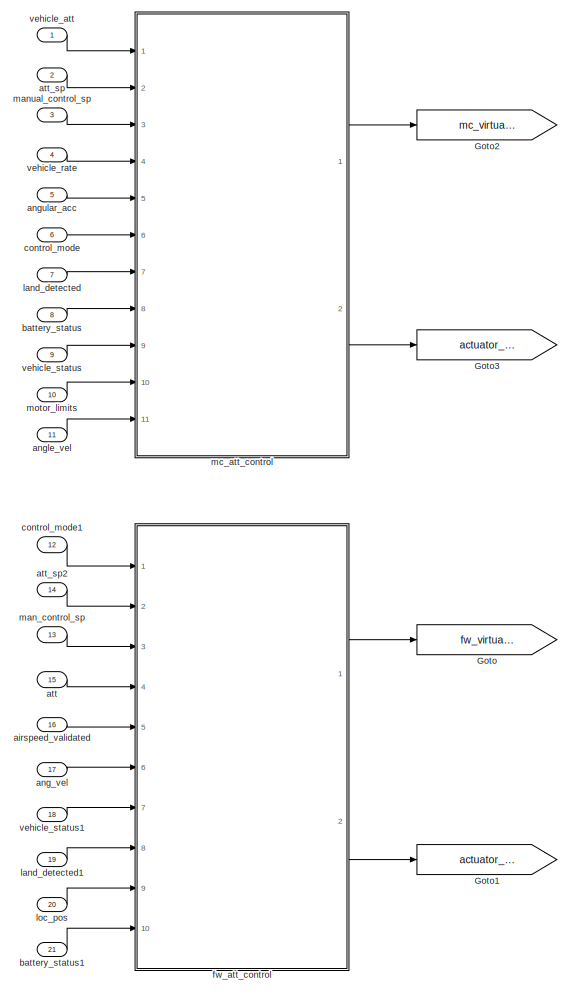
[diagram: root canvas - part 1/2, left side, full height]
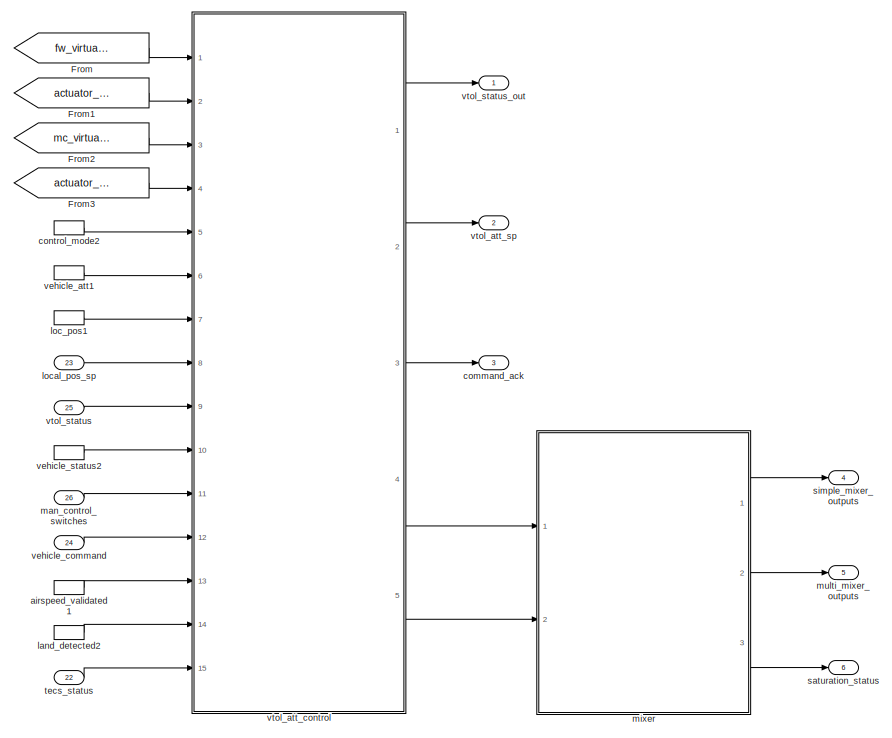
[diagram: root canvas - part 2/2, middle right region]
MODEL slx_12d112908b00
KIND model
CONFIG AbsTol = auto
CONFIG EnableMultiTasking = off
CONFIG FixedStep = auto
CONFIG MaxStep = auto
CONFIG MinStep = auto
CONFIG RelTol = 1e-3
CONFIG SampleTimeConstraint = Unconstrained
CONFIG SolverName = FixedStepAuto
CONFIG StartTime = 0.0
CONFIG StopTime = 10.0
BLOCK [From] From
  GotoTag = fw_virtual_att_sp
BLOCK [From] From1
  GotoTag = actuator_inputs_fw
BLOCK [From] From2
  GotoTag = mc_virtual_att_sp
BLOCK [From] From3
  GotoTag = actuator_inputs_mc
BLOCK [Goto] Goto
  GotoTag = fw_virtual_att_sp
BLOCK [Goto] Goto1
  GotoTag = actuator_inputs_fw
BLOCK [Goto] Goto2
  GotoTag = mc_virtual_att_sp
BLOCK [Goto] Goto3
  GotoTag = actuator_inputs_mc
BLOCK [Inport] airspeed_validated
  BusOutputAsStruct = on
  OutDataTypeStr = Bus: px4_airspeed_validated
  Port = 16
BLOCK [InportShadow] airspeed_validated1
  BusOutputAsStruct = on
  OutDataTypeStr = Bus: px4_airspeed_validated
  Port = 16
BLOCK [Inport] ang_vel
  BusOutputAsStruct = on
  OutDataTypeStr = Bus: px4_vehicle_angular_velocity
  Port = 17
BLOCK [Inport] angle_vel
  BusOutputAsStruct = on
  OutDataTypeStr = Bus: px4_vehicle_angular_velocity
  Port = 11
BLOCK [Inport] angular_acc
  BusOutputAsStruct = on
  OutDataTypeStr = Bus: px4_vehicle_angular_acceleration
  Port = 5
BLOCK [Inport] att
  BusOutputAsStruct = on
  OutDataTypeStr = Bus: px4_vehicle_attitude
  Port = 15
BLOCK [Inport] att_sp
  BusOutputAsStruct = on
  OutDataTypeStr = Bus: px4_vehicle_attitude_setpoint
  Port = 2
BLOCK [Inport] att_sp2
  BusOutputAsStruct = on
  OutDataTypeStr = Bus: px4_vehicle_attitude_setpoint
  Port = 14
BLOCK [Inport] battery_status
  BusOutputAsStruct = on
  OutDataTypeStr = Bus: px4_battery_status
  Port = 8
BLOCK [Inport] battery_status1
  BusOutputAsStruct = on
  OutDataTypeStr = Bus: px4_battery_status
  Port = 21
BLOCK [Outport] command_ack
  BusOutputAsStruct = on
  OutDataTypeStr = Bus: px4_vehicle_command_ack
  Port = 3
BLOCK [Inport] control_mode
  BusOutputAsStruct = on
  OutDataTypeStr = Bus: px4_vehicle_control_mode
  Port = 6
BLOCK [Inport] control_mode1
  BusOutputAsStruct = on
  OutDataTypeStr = Bus: px4_vehicle_control_mode
  Port = 12
BLOCK [InportShadow] control_mode2
  BusOutputAsStruct = on
  OutDataTypeStr = Bus: px4_vehicle_control_mode
  Port = 6
BLOCK [ModelReference] fw_att_control
  ModelNameDialog = fw_att_control.slx
  ModelReferenceVersion = 1.894
  Ports = [10, 2]
BLOCK [Inport] land_detected
  BusOutputAsStruct = on
  OutDataTypeStr = Bus: px4_vehicle_land_detected
  Port = 7
BLOCK [Inport] land_detected1
  BusOutputAsStruct = on
  OutDataTypeStr = Bus: px4_vehicle_land_detected
  Port = 19
BLOCK [InportShadow] land_detected2
  BusOutputAsStruct = on
  OutDataTypeStr = Bus: px4_vehicle_land_detected
  Port = 19
BLOCK [Inport] loc_pos
  BusOutputAsStruct = on
  OutDataTypeStr = Bus: px4_vehicle_local_position
  Port = 20
BLOCK [InportShadow] loc_pos1
  BusOutputAsStruct = on
  OutDataTypeStr = Bus: px4_vehicle_local_position
  Port = 20
BLOCK [Inport] local_pos_sp
  BusOutputAsStruct = on
  OutDataTypeStr = Bus: px4_vehicle_local_position_setpoint
  Port = 23
BLOCK [Inport] man_control_sp
  BusOutputAsStruct = on
  OutDataTypeStr = Bus: px4_manual_control_setpoint
  Port = 13
BLOCK [Inport] man_control_switches
  BusOutputAsStruct = on
  OutDataTypeStr = Bus: px4_manual_control_switches
  Port = 26
BLOCK [Inport] manual_control_sp
  BusOutputAsStruct = on
  OutDataTypeStr = Bus: px4_manual_control_setpoint
  Port = 3
BLOCK [ModelReference] mc_att_control
  ModelNameDialog = mc_att_control.slx
  ModelReferenceVersion = 1.1321
  Ports = [11, 2]
BLOCK [ModelReference] mixer
  ModelNameDialog = mixer.slx
  ModelReferenceVersion = 1.641
  Ports = [2, 3]
BLOCK [Inport] motor_limits
  BusOutputAsStruct = on
  OutDataTypeStr = Bus: px4_multirotor_motor_limits
  Port = 10
BLOCK [Outport] multi_mixer_outputs
  Port = 5
BLOCK [Outport] saturation_status
  Port = 6
BLOCK [Outport] simple_mixer_outputs
  Port = 4
BLOCK [Inport] tecs_status
  BusOutputAsStruct = on
  OutDataTypeStr = Bus: px4_tecs_status
  Port = 22
BLOCK [Inport] vehicle_att
  BusOutputAsStruct = on
  OutDataTypeStr = Bus: px4_vehicle_attitude
BLOCK [InportShadow] vehicle_att1
  BusOutputAsStruct = on
  OutDataTypeStr = Bus: px4_vehicle_attitude
BLOCK [Inport] vehicle_command
  BusOutputAsStruct = on
  OutDataTypeStr = Bus: px4_vehicle_command
  Port = 24
BLOCK [Inport] vehicle_rate
  BusOutputAsStruct = on
  OutDataTypeStr = Bus: px4_vehicle_angular_velocity
  Port = 4
BLOCK [Inport] vehicle_status
  BusOutputAsStruct = on
  OutDataTypeStr = Bus: px4_vehicle_status
  Port = 9
BLOCK [Inport] vehicle_status1
  BusOutputAsStruct = on
  OutDataTypeStr = Bus: px4_vehicle_status
  Port = 18
BLOCK [InportShadow] vehicle_status2
  BusOutputAsStruct = on
  OutDataTypeStr = Bus: px4_vehicle_status
  Port = 9
BLOCK [ModelReference] vtol_att_control
  ModelNameDialog = vtol_att_control.slx
  ModelReferenceVersion = 1.1418
  Ports = [15, 5]
BLOCK [Outport] vtol_att_sp
  BusOutputAsStruct = on
  OutDataTypeStr = Bus: px4_vehicle_attitude_setpoint
  Port = 2
BLOCK [Inport] vtol_status
  BusOutputAsStruct = on
  OutDataTypeStr = Bus: px4_vtol_vehicle_status
  Port = 25
BLOCK [Outport] vtol_status_out
  BusOutputAsStruct = on
  OutDataTypeStr = Bus: px4_vtol_vehicle_status
LINE From1:1 -> vtol_att_control:2
LINE From2:1 -> vtol_att_control:3
LINE From3:1 -> vtol_att_control:4
LINE From:1 -> vtol_att_control:1
LINE airspeed_validated1:1 -> vtol_att_control:13
LINE airspeed_validated:1 -> fw_att_control:5
LINE ang_vel:1 -> fw_att_control:6
LINE angle_vel:1 -> mc_att_control:11
LINE angular_acc:1 -> mc_att_control:5
LINE att:1 -> fw_att_control:4
LINE att_sp2:1 -> fw_att_control:2
LINE att_sp:1 -> mc_att_control:2
LINE battery_status1:1 -> fw_att_control:10
LINE battery_status:1 -> mc_att_control:8
LINE control_mode1:1 -> fw_att_control:1
LINE control_mode2:1 -> vtol_att_control:5
LINE control_mode:1 -> mc_att_control:6
LINE fw_att_control:1 -> Goto:1
LINE fw_att_control:2 -> Goto1:1
LINE land_detected1:1 -> fw_att_control:8
LINE land_detected2:1 -> vtol_att_control:14
LINE land_detected:1 -> mc_att_control:7
LINE loc_pos1:1 -> vtol_att_control:7
LINE loc_pos:1 -> fw_att_control:9
LINE local_pos_sp:1 -> vtol_att_control:8
LINE man_control_sp:1 -> fw_att_control:3
LINE man_control_switches:1 -> vtol_att_control:11
LINE manual_control_sp:1 -> mc_att_control:3
LINE mc_att_control:1 -> Goto2:1
LINE mc_att_control:2 -> Goto3:1
LINE mixer:1 -> simple_mixer_outputs:1
LINE mixer:2 -> multi_mixer_outputs:1
LINE mixer:3 -> saturation_status:1
LINE motor_limits:1 -> mc_att_control:10
LINE tecs_status:1 -> vtol_att_control:15
LINE vehicle_att1:1 -> vtol_att_control:6
LINE vehicle_att:1 -> mc_att_control:1
LINE vehicle_command:1 -> vtol_att_control:12
LINE vehicle_rate:1 -> mc_att_control:4
LINE vehicle_status1:1 -> fw_att_control:7
LINE vehicle_status2:1 -> vtol_att_control:10
LINE vehicle_status:1 -> mc_att_control:9
LINE vtol_att_control:1 -> vtol_status_out:1
LINE vtol_att_control:2 -> vtol_att_sp:1
LINE vtol_att_control:3 -> command_ack:1
LINE vtol_att_control:4 -> mixer:1
LINE vtol_att_control:5 -> mixer:2
LINE vtol_status:1 -> vtol_att_control:9
